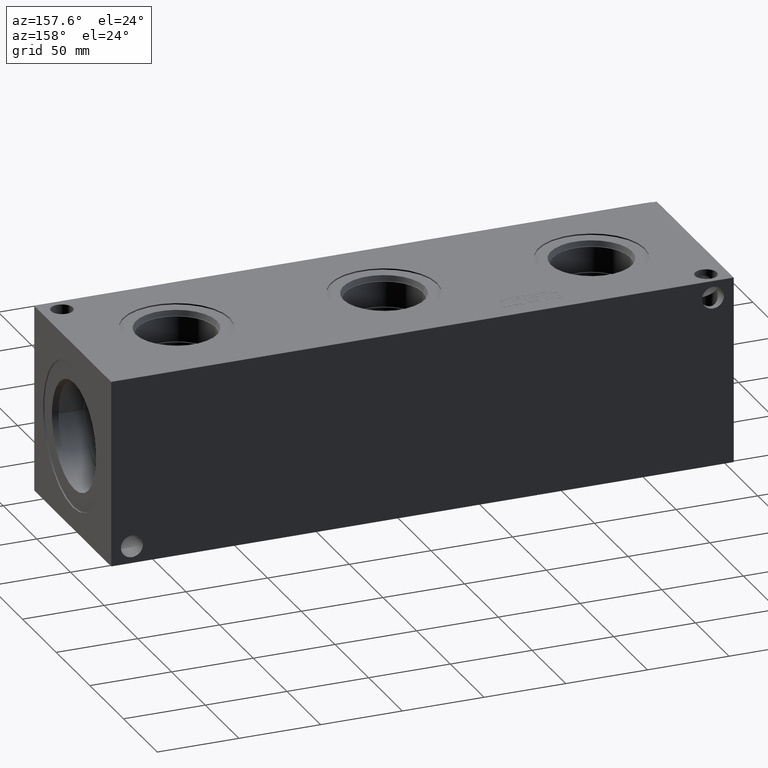
[diagram: clean part render]
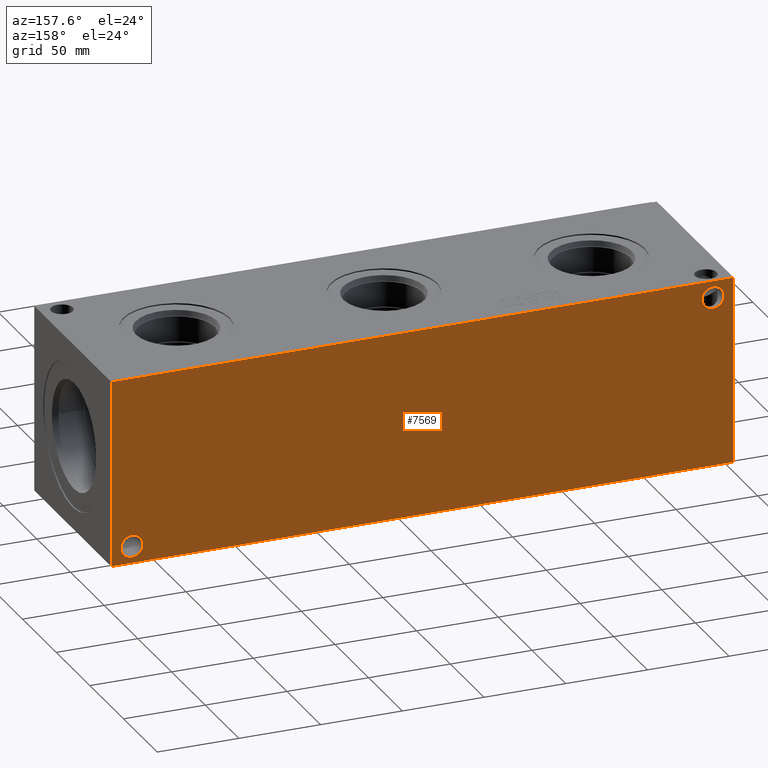
[diagram: same view with one face highlighted and labeled with its STEP entity id]
A machine part, auxiliary view. The second image highlights one B-rep face of the part: STEP entity #7569.
In plain terms, the highlighted planar face has unit normal (0, 1, 0).
Its self-contained STEP definition (entity closure, byte-faithful):
#87=CIRCLE('',#7818,6.7437);
#90=CIRCLE('',#7827,6.7437);
#228=FACE_BOUND('',#1354,.T.);
#229=FACE_BOUND('',#1355,.T.);
#925=FACE_OUTER_BOUND('',#1353,.T.);
#1353=EDGE_LOOP('',(#6627,#6628,#6629,#6630));
#1354=EDGE_LOOP('',(#6631));
#1355=EDGE_LOOP('',(#6632));
#1647=LINE('',#11679,#2369);
#2081=LINE('',#13005,#2803);
#2082=LINE('',#13008,#2804);
#2083=LINE('',#13009,#2805);
#2369=VECTOR('',#8415,10.);
#2803=VECTOR('',#9487,10.);
#2804=VECTOR('',#9490,10.);
#2805=VECTOR('',#9491,10.);
#3123=VERTEX_POINT('',#11676);
#3124=VERTEX_POINT('',#11678);
#3401=VERTEX_POINT('',#12620);
#3406=VERTEX_POINT('',#12636);
#3508=VERTEX_POINT('',#13001);
#3510=VERTEX_POINT('',#13007);
#3982=EDGE_CURVE('',#3123,#3124,#1647,.T.);
#4395=EDGE_CURVE('',#3401,#3401,#87,.T.);
#4404=EDGE_CURVE('',#3406,#3406,#90,.T.);
#4554=EDGE_CURVE('',#3508,#3124,#2081,.T.);
#4555=EDGE_CURVE('',#3510,#3508,#2082,.T.);
#4556=EDGE_CURVE('',#3510,#3123,#2083,.T.);
#6627=ORIENTED_EDGE('',*,*,#4555,.T.);
#6628=ORIENTED_EDGE('',*,*,#4554,.T.);
#6629=ORIENTED_EDGE('',*,*,#3982,.F.);
#6630=ORIENTED_EDGE('',*,*,#4556,.F.);
#6631=ORIENTED_EDGE('',*,*,#4395,.T.);
#6632=ORIENTED_EDGE('',*,*,#4404,.T.);
#6879=PLANE('',#7980);
#7569=ADVANCED_FACE('',(#925,#228,#229),#6879,.T.);
#7818=AXIS2_PLACEMENT_3D('',#12622,#9110,#9111);
#7827=AXIS2_PLACEMENT_3D('',#12638,#9130,#9131);
#7980=AXIS2_PLACEMENT_3D('',#13006,#9488,#9489);
#8415=DIRECTION('',(-1.,0.,0.));
#9110=DIRECTION('center_axis',(0.,-1.,0.));
#9111=DIRECTION('ref_axis',(1.,0.,0.));
#9130=DIRECTION('center_axis',(0.,-1.,0.));
#9131=DIRECTION('ref_axis',(1.,0.,0.));
#9487=DIRECTION('',(0.,0.,1.));
#9488=DIRECTION('center_axis',(0.,1.,0.));
#9489=DIRECTION('ref_axis',(-1.,0.,0.));
#9490=DIRECTION('',(-1.,0.,0.));
#9491=DIRECTION('',(0.,0.,1.));
#11676=CARTESIAN_POINT('',(381.,114.3,114.3));
#11678=CARTESIAN_POINT('',(0.,114.3,114.3));
#11679=CARTESIAN_POINT('',(381.,114.3,114.3));
#12620=CARTESIAN_POINT('',(5.9563,114.3,103.9876));
#12622=CARTESIAN_POINT('Origin',(12.7,114.3,103.9876));
#12636=CARTESIAN_POINT('',(361.5563,114.3,10.3124));
#12638=CARTESIAN_POINT('Origin',(368.3,114.3,10.3124));
#13001=CARTESIAN_POINT('',(0.,114.3,0.));
#13005=CARTESIAN_POINT('',(0.,114.3,0.));
#13006=CARTESIAN_POINT('Origin',(381.,114.3,0.));
#13007=CARTESIAN_POINT('',(381.,114.3,0.));
#13008=CARTESIAN_POINT('',(381.,114.3,0.));
#13009=CARTESIAN_POINT('',(381.,114.3,0.));